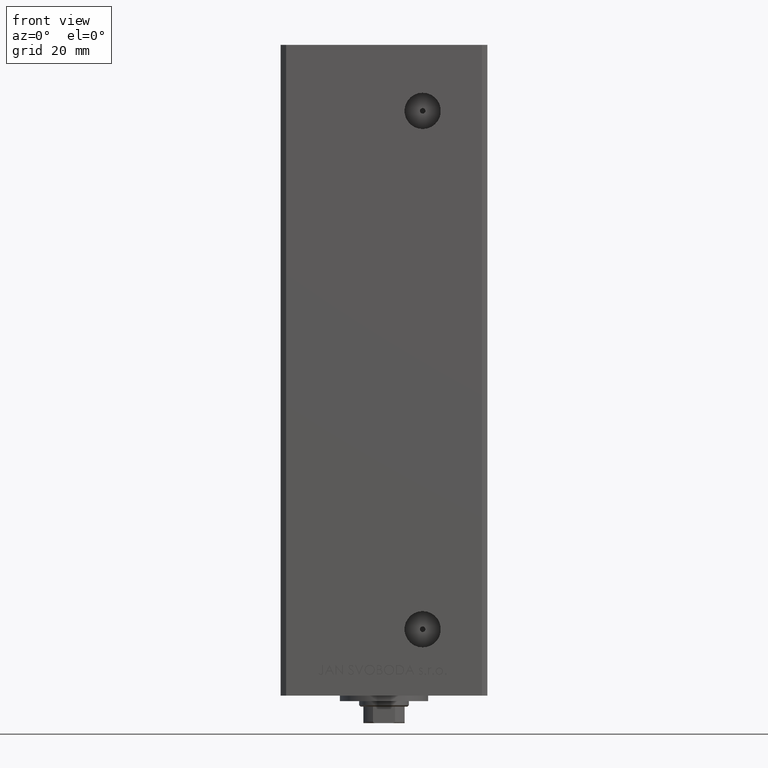
[diagram: clean part render]
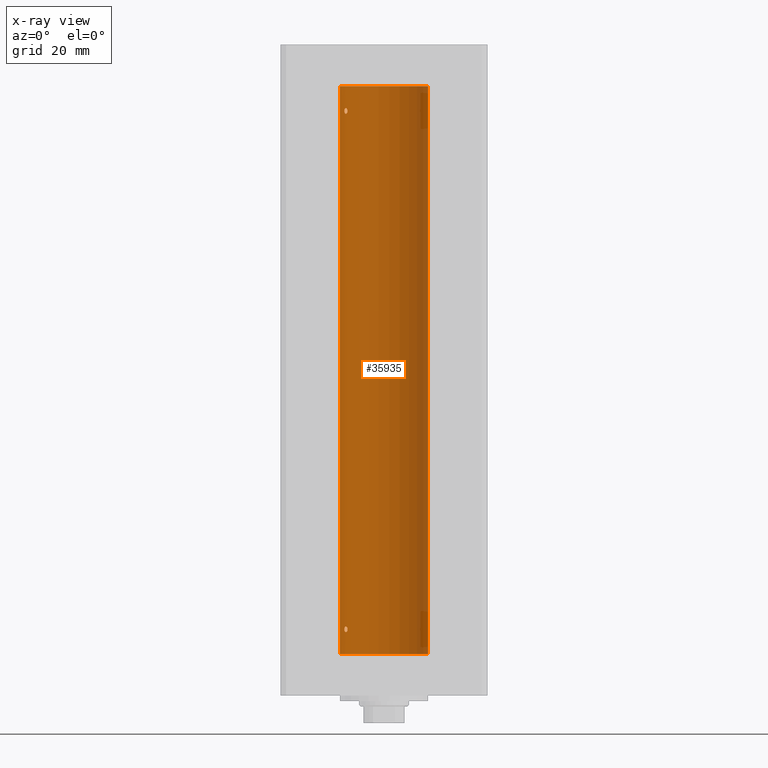
[diagram: x-ray — body ghosted, one internal face saturated and labeled with its STEP entity id]
A machine part, front view, then the same camera in x-ray: the body is ghosted and one INTERNAL B-rep face — a face not visible from any outside direction — is saturated and labeled: STEP entity #35935.
In plain terms, the highlighted cylindrical surface (partial cylindrical patch) has radius 16 mm, axis along (-0, -0, -1).
Its self-contained STEP definition (entity closure, byte-faithful):
#327 = CARTESIAN_POINT ( 'NONE',  ( -14.17576283486774713, 7.420212263225987925, 197.8252530343043532 ) ) ;
#342 = EDGE_LOOP ( 'NONE', ( #34013, #12527 ) ) ;
#684 = CARTESIAN_POINT ( 'NONE',  ( -14.38749456993816445, 6.999999999999982236, 8.857147409635420132 ) ) ;
#746 = CARTESIAN_POINT ( 'NONE',  ( 16.00000000000000000, 1.959434878635765131E-15, 0.000000000000000000 ) ) ;
#926 = CARTESIAN_POINT ( 'NONE',  ( -13.37674940693423054, 8.779234808442856419, 8.360244157126787812 ) ) ;
#1372 = VERTEX_POINT ( 'NONE', #3306 ) ;
#1618 = CARTESIAN_POINT ( 'NONE',  ( -13.25390108270225298, 8.962947079338393408, 196.7214357623584817 ) ) ;
#2131 = CARTESIAN_POINT ( 'NONE',  ( 16.00000000000000000, 1.959434878635765131E-15, 206.0000000000000000 ) ) ;
#2367 = CARTESIAN_POINT ( 'NONE',  ( -13.22875655532296157, 8.999999999999998224, 197.1406447609177235 ) ) ;
#2599 = CARTESIAN_POINT ( 'NONE',  ( -14.37250282441143945, 7.031013007322937547, 196.7168569960372793 ) ) ;
#2601 = CYLINDRICAL_SURFACE ( 'NONE', #16876, 16.00000000000000000 ) ;
#3115 = CARTESIAN_POINT ( 'NONE',  ( -13.22875655532295802, 8.999999999999996447, 196.9999999999999716 ) ) ;
#3306 = CARTESIAN_POINT ( 'NONE',  ( -13.22875655532296335, 8.999999999999982236, 9.000000000000007105 ) ) ;
#3787 = EDGE_CURVE ( 'NONE', #44695, #24052, #10036, .T. ) ;
#3963 = CARTESIAN_POINT ( 'NONE',  ( -13.22875655532296513, 8.999999999999982236, 8.929565622361650412 ) ) ;
#4093 = CARTESIAN_POINT ( 'NONE',  ( -14.38749456993816089, 6.999999999999999112, 197.1426254415242454 ) ) ;
#4945 = CARTESIAN_POINT ( 'NONE',  ( -13.49759407097375608, 8.592283911330213186, 8.184099152127679133 ) ) ;
#5430 = CARTESIAN_POINT ( 'NONE',  ( -14.11618354197462644, 7.533333301880464461, 9.893207651933423108 ) ) ;
#5890 = CARTESIAN_POINT ( 'NONE',  ( -14.38749456993815912, 6.999999999999998224, 196.9999999999999716 ) ) ;
#6000 = AXIS2_PLACEMENT_3D ( 'NONE', #7064, #33677, #30163 ) ;
#7064 = CARTESIAN_POINT ( 'NONE',  ( 0.000000000000000000, 0.000000000000000000, 206.0000000000000000 ) ) ;
#8098 = CARTESIAN_POINT ( 'NONE',  ( -14.11618354197461400, 7.533333301880476895, 197.8932076519334373 ) ) ;
#8682 = CARTESIAN_POINT ( 'NONE',  ( -13.98878315975730224, 7.767347947480332415, 9.980546143261287639 ) ) ;
#9893 = CARTESIAN_POINT ( 'NONE',  ( -13.37741691572086289, 8.778212469423007036, 197.6408828602271228 ) ) ;
#10036 = B_SPLINE_CURVE_WITH_KNOTS ( 'NONE', 3,
 ( #3115, #2367, #25220, #41560, #9893, #40566, #33259, #42523, #27188, #8098, #327, #45575, #38026, #49596, #4093, #11376 ),
 .UNSPECIFIED., .F., .F.,
 ( 4, 2, 2, 2, 2, 2, 2, 4 ),
 ( 0.003377672193071779884, 0.003799209865779893530, 0.004220747538488007176, 0.005063822883904185029, 0.005485360556612275257, 0.005906898229320365484, 0.006328435902028455712, 0.006749973574736545072 ),
 .UNSPECIFIED. ) ;
#10134 = CARTESIAN_POINT ( 'NONE',  ( -14.27547848986623080, 7.226527013162187707, 196.3525557301815638 ) ) ;
#10883 = LINE ( 'NONE', #28373, #12308 ) ;
#11376 = CARTESIAN_POINT ( 'NONE',  ( -14.38749456993815912, 6.999999999999998224, 196.9999999999999716 ) ) ;
#11725 = CARTESIAN_POINT ( 'NONE',  ( -13.77582987033441952, 8.139210687602698613, 8.002110545841825129 ) ) ;
#12183 = CARTESIAN_POINT ( 'NONE',  ( -14.31650799088419213, 7.144337649771898668, 9.535522627373698157 ) ) ;
#12308 = VECTOR ( 'NONE', #38264, 1000.000000000000000 ) ;
#12473 = CARTESIAN_POINT ( 'NONE',  ( -13.70481462797718386, 8.258098555717490186, 8.025997477291141990 ) ) ;
#12527 = ORIENTED_EDGE ( 'NONE', *, *, #32400, .F. ) ;
#12691 = CARTESIAN_POINT ( 'NONE',  ( -13.24976519864029889, 8.969293778684560792, 9.281535226335167366 ) ) ;
#13173 = DIRECTION ( 'NONE',  ( -0.000000000000000000, -0.000000000000000000, -1.000000000000000000 ) ) ;
#13646 = CARTESIAN_POINT ( 'NONE',  ( -13.26838749541400730, 8.941532915076043864, 196.6562177939213427 ) ) ;
#13895 = FACE_OUTER_BOUND ( 'NONE', #48875, .T. ) ;
#13910 = B_SPLINE_CURVE_WITH_KNOTS ( 'NONE', 3,
 ( #34604, #684, #27057, #42162, #15494, #27552, #34850, #46920, #35096, #11725, #12473, #27805, #4945, #926, #46413, #23522, #15987, #39110, #3963, #19264 ),
 .UNSPECIFIED., .F., .F.,
 ( 4, 2, 2, 2, 2, 2, 2, 2, 2, 4 ),
 ( 0.000000000000000000, 0.0004222090241339719434, 0.0008444180482679438868, 0.001266627072401915830, 0.001688836096535887774, 0.002111045120669859717, 0.002533254144803831660, 0.002955463168937803604, 0.003166567681004789359, 0.003377672193071775547 ),
 .UNSPECIFIED. ) ;
#14150 = CARTESIAN_POINT ( 'NONE',  ( -13.37674940693422698, 8.779234808442867077, 196.3602441571267718 ) ) ;
#15494 = CARTESIAN_POINT ( 'NONE',  ( -14.27547848986623258, 7.226527013162171720, 8.352555730181538962 ) ) ;
#15987 = CARTESIAN_POINT ( 'NONE',  ( -13.25390108270226364, 8.962947079338375644, 8.721435762358465738 ) ) ;
#16288 = EDGE_CURVE ( 'NONE', #24052, #44695, #48150, .T. ) ;
#16708 = CARTESIAN_POINT ( 'NONE',  ( -13.55800260393082901, 8.498809056167502263, 9.903643446210180556 ) ) ;
#16876 = AXIS2_PLACEMENT_3D ( 'NONE', #36285, #16927, #28735 ) ;
#16924 = CARTESIAN_POINT ( 'NONE',  ( -13.22875655532295802, 8.999999999999998224, 196.9295656223616220 ) ) ;
#16927 = DIRECTION ( 'NONE',  ( -0.000000000000000000, -0.000000000000000000, -1.000000000000000000 ) ) ;
#17185 = EDGE_CURVE ( 'NONE', #42612, #1372, #13910, .T. ) ;
#17420 = CARTESIAN_POINT ( 'NONE',  ( -13.23400746336172418, 8.992294519018086518, 196.8578145590230122 ) ) ;
#17626 = ORIENTED_EDGE ( 'NONE', *, *, #16288, .F. ) ;
#17903 = CARTESIAN_POINT ( 'NONE',  ( -13.32426099938365383, 8.858246960865843178, 196.4688748775330112 ) ) ;
#18633 = EDGE_CURVE ( 'NONE', #42079, #39344, #10883, .T. ) ;
#19264 = CARTESIAN_POINT ( 'NONE',  ( -13.22875655532296335, 8.999999999999982236, 9.000000000000007105 ) ) ;
#19442 = CARTESIAN_POINT ( 'NONE',  ( -16.00000000000000000, 0.000000000000000000, 0.000000000000000000 ) ) ;
#20484 = CARTESIAN_POINT ( 'NONE',  ( -13.37741691572086467, 8.778212469422998154, 9.640882860227108608 ) ) ;
#20694 = CARTESIAN_POINT ( 'NONE',  ( -14.31660136508398828, 7.144151923086062617, 196.4646217954444012 ) ) ;
#21161 = ORIENTED_EDGE ( 'NONE', *, *, #3787, .F. ) ;
#21288 = CARTESIAN_POINT ( 'NONE',  ( -14.38749456993815912, 6.999999999999998224, 196.9999999999999716 ) ) ;
#23393 = AXIS2_PLACEMENT_3D ( 'NONE', #41720, #29398, #44739 ) ;
#23522 = CARTESIAN_POINT ( 'NONE',  ( -13.26838749541401263, 8.941532915076029653, 8.656217793921380022 ) ) ;
#24052 = VERTEX_POINT ( 'NONE', #21288 ) ;
#24505 = CARTESIAN_POINT ( 'NONE',  ( -14.37227256866306746, 7.031482256185695334, 9.284457240976488279 ) ) ;
#24683 = B_SPLINE_CURVE_WITH_KNOTS ( 'NONE', 3,
 ( #43363, #28275, #12691, #46893, #20484, #16708, #39841, #27521, #8682, #5430, #32290, #32044, #12183, #24505, #27780, #47383 ),
 .UNSPECIFIED., .F., .F.,
 ( 4, 2, 2, 2, 2, 2, 2, 4 ),
 ( 0.003377672193071775547, 0.003799209865779873581, 0.004220747538487971615, 0.005063822883904167682, 0.005485360556612266583, 0.005906898229320366352, 0.006328435902028466120, 0.006749973574736565021 ),
 .UNSPECIFIED. ) ;
#25220 = CARTESIAN_POINT ( 'NONE',  ( -13.24976519864029179, 8.969293778684573226, 197.2815352263351372 ) ) ;
#26035 = CIRCLE ( 'NONE', #6000, 16.00000000000000000 ) ;
#26257 = ORIENTED_EDGE ( 'NONE', *, *, #39959, .F. ) ;
#26754 = CARTESIAN_POINT ( 'NONE',  ( -13.22875655532295802, 8.999999999999996447, 196.9999999999999716 ) ) ;
#27057 = CARTESIAN_POINT ( 'NONE',  ( -14.37250282441144655, 7.031013007322923336, 8.716856996037272154 ) ) ;
#27188 = CARTESIAN_POINT ( 'NONE',  ( -13.98878315975728981, 7.767347947480344850, 197.9805461432612503 ) ) ;
#27521 = CARTESIAN_POINT ( 'NONE',  ( -13.91892506969883669, 7.891973478508838902, 10.00155212263245375 ) ) ;
#27552 = CARTESIAN_POINT ( 'NONE',  ( -14.17528142432534288, 7.421143801852442934, 8.173943073538671555 ) ) ;
#27722 = CARTESIAN_POINT ( 'NONE',  ( -14.38749456993816800, 6.999999999999984013, 9.000000000000007105 ) ) ;
#27780 = CARTESIAN_POINT ( 'NONE',  ( -14.38749456993816978, 6.999999999999985789, 9.142625441524216967 ) ) ;
#27805 = CARTESIAN_POINT ( 'NONE',  ( -13.56386909142670660, 8.487613976483618927, 8.118224297996086136 ) ) ;
#28036 = ORIENTED_EDGE ( 'NONE', *, *, #36716, .F. ) ;
#28275 = CARTESIAN_POINT ( 'NONE',  ( -13.22875655532296335, 8.999999999999978684, 9.140644760917750133 ) ) ;
#28373 = CARTESIAN_POINT ( 'NONE',  ( -16.00000000000000000, 0.000000000000000000, 206.0000000000000000 ) ) ;
#28497 = CARTESIAN_POINT ( 'NONE',  ( -14.38749456993815556, 6.999999999999997335, 196.8571474096353313 ) ) ;
#28733 = CARTESIAN_POINT ( 'NONE',  ( -14.11621438951178398, 7.533308783217012028, 196.1065710718395110 ) ) ;
#28735 = DIRECTION ( 'NONE',  ( -1.000000000000000000, 0.000000000000000000, 0.000000000000000000 ) ) ;
#28977 = CARTESIAN_POINT ( 'NONE',  ( -13.91838063522421187, 7.892966471903947401, 195.9981483133086897 ) ) ;
#29235 = FACE_BOUND ( 'NONE', #342, .T. ) ;
#29398 = DIRECTION ( 'NONE',  ( -0.000000000000000000, 0.000000000000000000, 1.000000000000000000 ) ) ;
#30163 = DIRECTION ( 'NONE',  ( 1.000000000000000000, 0.000000000000000000, 0.000000000000000000 ) ) ;
#32044 = CARTESIAN_POINT ( 'NONE',  ( -14.27521483392929902, 7.227035590538620546, 9.647859870688199280 ) ) ;
#32262 = CARTESIAN_POINT ( 'NONE',  ( -13.98699950016872506, 7.770591669637118670, 196.0184768166484730 ) ) ;
#32290 = CARTESIAN_POINT ( 'NONE',  ( -14.17576283486775779, 7.420212263225971050, 9.825253034304363808 ) ) ;
#32400 = EDGE_CURVE ( 'NONE', #1372, #42612, #24683, .T. ) ;
#32752 = CARTESIAN_POINT ( 'NONE',  ( -13.77582987033441064, 8.139210687602716376, 196.0021105458418447 ) ) ;
#32843 = EDGE_LOOP ( 'NONE', ( #17626, #21161 ) ) ;
#33259 = CARTESIAN_POINT ( 'NONE',  ( -13.70792461986390798, 8.256614593260307444, 197.9966215356422765 ) ) ;
#33262 = LINE ( 'NONE', #2131, #40134 ) ;
#33677 = DIRECTION ( 'NONE',  ( -0.000000000000000000, 0.000000000000000000, 1.000000000000000000 ) ) ;
#33858 = CIRCLE ( 'NONE', #23393, 16.00000000000000000 ) ;
#34013 = ORIENTED_EDGE ( 'NONE', *, *, #17185, .F. ) ;
#34604 = CARTESIAN_POINT ( 'NONE',  ( -14.38749456993816800, 6.999999999999984013, 9.000000000000007105 ) ) ;
#34850 = CARTESIAN_POINT ( 'NONE',  ( -14.11621438951178575, 7.533308783216997817, 8.106571071839523412 ) ) ;
#35096 = CARTESIAN_POINT ( 'NONE',  ( -13.91838063522421542, 7.892966471903923420, 7.998148313308686141 ) ) ;
#35147 = VERTEX_POINT ( 'NONE', #746 ) ;
#35491 = ORIENTED_EDGE ( 'NONE', *, *, #18633, .T. ) ;
#35935 = ADVANCED_FACE ( 'NONE', ( #13895, #29235, #44580 ), #2601, .F. ) ;
#36033 = CARTESIAN_POINT ( 'NONE',  ( -13.56386909142669772, 8.487613976483638467, 196.1182242979961075 ) ) ;
#36285 = CARTESIAN_POINT ( 'NONE',  ( 0.000000000000000000, 0.000000000000000000, 206.0000000000000000 ) ) ;
#36535 = CARTESIAN_POINT ( 'NONE',  ( -13.22875655532295802, 8.999999999999996447, 196.9999999999999716 ) ) ;
#36716 = EDGE_CURVE ( 'NONE', #41393, #35147, #33262, .T. ) ;
#37145 = CARTESIAN_POINT ( 'NONE',  ( -16.00000000000000000, 0.000000000000000000, 206.0000000000000000 ) ) ;
#38026 = CARTESIAN_POINT ( 'NONE',  ( -14.31650799088418324, 7.144337649771909327, 197.5355226273736378 ) ) ;
#38264 = DIRECTION ( 'NONE',  ( -0.000000000000000000, -0.000000000000000000, -1.000000000000000000 ) ) ;
#39110 = CARTESIAN_POINT ( 'NONE',  ( -13.23400746336173484, 8.992294519018072307, 8.857814559023026391 ) ) ;
#39344 = VERTEX_POINT ( 'NONE', #19442 ) ;
#39841 = CARTESIAN_POINT ( 'NONE',  ( -13.70792461986391864, 8.256614593260295010, 9.996621535642280065 ) ) ;
#39959 = EDGE_CURVE ( 'NONE', #35147, #39344, #33858, .T. ) ;
#40134 = VECTOR ( 'NONE', #13173, 1000.000000000000000 ) ;
#40566 = CARTESIAN_POINT ( 'NONE',  ( -13.55800260393082901, 8.498809056167511145, 197.9036434462101965 ) ) ;
#41393 = VERTEX_POINT ( 'NONE', #47356 ) ;
#41560 = CARTESIAN_POINT ( 'NONE',  ( -13.32457971225032267, 8.857769707964649797, 197.5319996627465571 ) ) ;
#41720 = CARTESIAN_POINT ( 'NONE',  ( 0.000000000000000000, 0.000000000000000000, 0.000000000000000000 ) ) ;
#42079 = VERTEX_POINT ( 'NONE', #37145 ) ;
#42162 = CARTESIAN_POINT ( 'NONE',  ( -14.31660136508400072, 7.144151923086045741, 8.464621795444484675 ) ) ;
#42523 = CARTESIAN_POINT ( 'NONE',  ( -13.91892506969882426, 7.891973478508846895, 198.0015521226324324 ) ) ;
#42530 = ORIENTED_EDGE ( 'NONE', *, *, #49599, .T. ) ;
#42612 = VERTEX_POINT ( 'NONE', #27722 ) ;
#43363 = CARTESIAN_POINT ( 'NONE',  ( -13.22875655532296335, 8.999999999999982236, 9.000000000000007105 ) ) ;
#44578 = CARTESIAN_POINT ( 'NONE',  ( -14.17528142432533755, 7.421143801852456257, 196.1739430735386520 ) ) ;
#44580 = FACE_BOUND ( 'NONE', #32843, .T. ) ;
#44695 = VERTEX_POINT ( 'NONE', #26754 ) ;
#44739 = DIRECTION ( 'NONE',  ( 1.000000000000000000, 0.000000000000000000, 0.000000000000000000 ) ) ;
#45575 = CARTESIAN_POINT ( 'NONE',  ( -14.27521483392929369, 7.227035590538639198, 197.6478598706882508 ) ) ;
#46413 = CARTESIAN_POINT ( 'NONE',  ( -13.32426099938365915, 8.858246960865836073, 8.468874877532975631 ) ) ;
#46893 = CARTESIAN_POINT ( 'NONE',  ( -13.32457971225033866, 8.857769707964637362, 9.531999662746560631 ) ) ;
#46920 = CARTESIAN_POINT ( 'NONE',  ( -13.98699950016873039, 7.770591669637105348, 8.018476816648488992 ) ) ;
#47356 = CARTESIAN_POINT ( 'NONE',  ( 16.00000000000000000, 1.959434878635765131E-15, 206.0000000000000000 ) ) ;
#47383 = CARTESIAN_POINT ( 'NONE',  ( -14.38749456993816800, 6.999999999999984013, 9.000000000000007105 ) ) ;
#47605 = CARTESIAN_POINT ( 'NONE',  ( -13.70481462797717320, 8.258098555717507949, 196.0259974772910994 ) ) ;
#48150 = B_SPLINE_CURVE_WITH_KNOTS ( 'NONE', 3,
 ( #5890, #28497, #2599, #20694, #10134, #44578, #28733, #32262, #28977, #32752, #47605, #36033, #48354, #14150, #17903, #13646, #1618, #17420, #16924, #36535 ),
 .UNSPECIFIED., .F., .F.,
 ( 4, 2, 2, 2, 2, 2, 2, 2, 2, 4 ),
 ( 0.000000000000000000, 0.0004222090241339814844, 0.0008444180482679629687, 0.001266627072401944453, 0.001688836096535925937, 0.002111045120669907422, 0.002533254144803888906, 0.002955463168937870391, 0.003166567681004825354, 0.003377672193071779884 ),
 .UNSPECIFIED. ) ;
#48354 = CARTESIAN_POINT ( 'NONE',  ( -13.49759407097375075, 8.592283911330225621, 196.1840991521276578 ) ) ;
#48875 = EDGE_LOOP ( 'NONE', ( #28036, #42530, #35491, #26257 ) ) ;
#49596 = CARTESIAN_POINT ( 'NONE',  ( -14.37227256866306213, 7.031482256185710433, 197.2844572409764510 ) ) ;
#49599 = EDGE_CURVE ( 'NONE', #41393, #42079, #26035, .T. ) ;